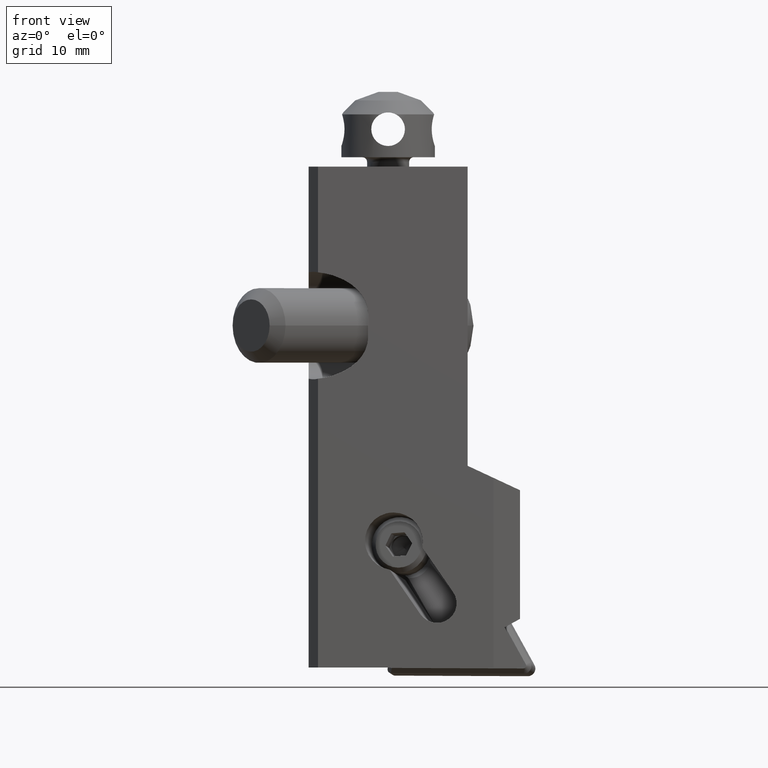
[diagram: clean part render]
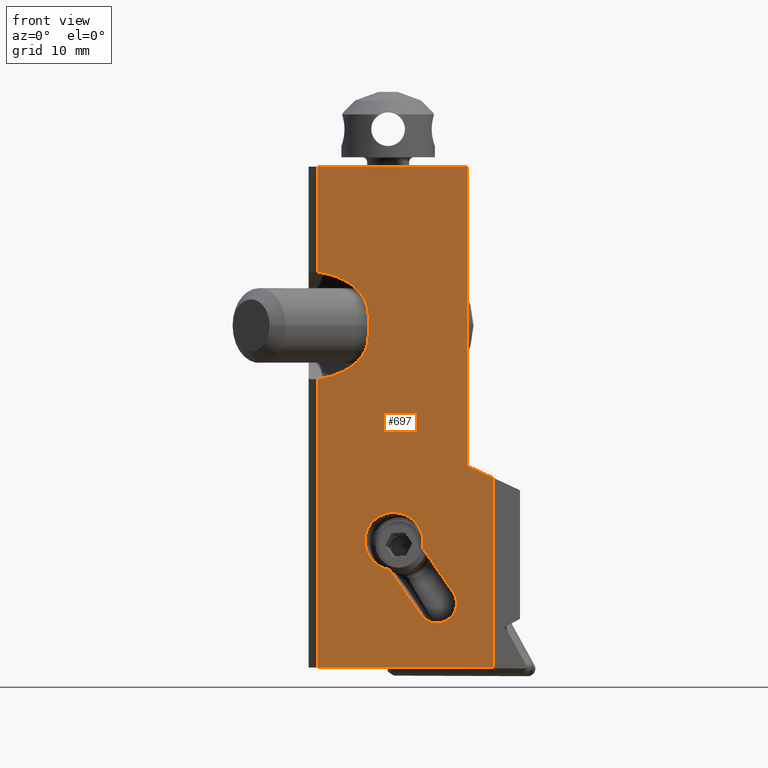
[diagram: same view with one face highlighted and labeled with its STEP entity id]
A machine part, front view. The second image highlights one B-rep face of the part: STEP entity #697.
In plain terms, the highlighted planar face has unit normal (0, 1, 0).
Its self-contained STEP definition (entity closure, byte-faithful):
#697=ADVANCED_FACE('',(#1038,#1039),#931,.F.);
#931=PLANE('',#4264);
#1038=FACE_BOUND('',#1074,.T.);
#1039=FACE_BOUND('',#1075,.T.);
#1074=EDGE_LOOP('',(#1344,#1345,#1346,#1347,#1348,#1349,#1350,#1351,#1352,
#1353));
#1075=EDGE_LOOP('',(#1354,#1355,#1356,#1357,#1358));
#1326=ELLIPSE('',#4259,6.36396103067893,4.5);
#1327=ELLIPSE('',#4260,6.36396103067893,4.5);
#1328=ELLIPSE('',#4261,3.11733698417095,3.062500000018);
#1329=ELLIPSE('',#4262,3.11733698417095,3.062500000018);
#1330=ELLIPSE('',#4263,2.13760250343591,2.100000000017);
#1344=ORIENTED_EDGE('',*,*,#2899,.T.);
#1345=ORIENTED_EDGE('',*,*,#2900,.T.);
#1346=ORIENTED_EDGE('',*,*,#2901,.T.);
#1347=ORIENTED_EDGE('',*,*,#2902,.F.);
#1348=ORIENTED_EDGE('',*,*,#2903,.T.);
#1349=ORIENTED_EDGE('',*,*,#2904,.T.);
#1350=ORIENTED_EDGE('',*,*,#2905,.T.);
#1351=ORIENTED_EDGE('',*,*,#2906,.F.);
#1352=ORIENTED_EDGE('',*,*,#2907,.T.);
#1353=ORIENTED_EDGE('',*,*,#2908,.T.);
#1354=ORIENTED_EDGE('',*,*,#2909,.T.);
#1355=ORIENTED_EDGE('',*,*,#2910,.F.);
#1356=ORIENTED_EDGE('',*,*,#2911,.T.);
#1357=ORIENTED_EDGE('',*,*,#2912,.T.);
#1358=ORIENTED_EDGE('',*,*,#2913,.T.);
#2526=VERTEX_POINT('',#5947);
#2527=VERTEX_POINT('',#5948);
#2528=VERTEX_POINT('',#5950);
#2529=VERTEX_POINT('',#5952);
#2530=VERTEX_POINT('',#5954);
#2531=VERTEX_POINT('',#5956);
#2532=VERTEX_POINT('',#5958);
#2533=VERTEX_POINT('',#5960);
#2534=VERTEX_POINT('',#5962);
#2535=VERTEX_POINT('',#5964);
#2536=VERTEX_POINT('',#5967);
#2537=VERTEX_POINT('',#5968);
#2538=VERTEX_POINT('',#5970);
#2539=VERTEX_POINT('',#5972);
#2540=VERTEX_POINT('',#5974);
#2899=EDGE_CURVE('',#2526,#2527,#3490,.T.);
#2900=EDGE_CURVE('',#2527,#2528,#3491,.T.);
#2901=EDGE_CURVE('',#2528,#2529,#3492,.T.);
#2902=EDGE_CURVE('',#2530,#2529,#3493,.T.);
#2903=EDGE_CURVE('',#2530,#2531,#3494,.T.);
#2904=EDGE_CURVE('',#2531,#2532,#3495,.T.);
#2905=EDGE_CURVE('',#2532,#2533,#3496,.T.);
#2906=EDGE_CURVE('',#2534,#2533,#1326,.T.);
#2907=EDGE_CURVE('',#2534,#2535,#3497,.T.);
#2908=EDGE_CURVE('',#2535,#2526,#1327,.T.);
#2909=EDGE_CURVE('',#2536,#2537,#1328,.T.);
#2910=EDGE_CURVE('',#2538,#2537,#1329,.T.);
#2911=EDGE_CURVE('',#2538,#2539,#3498,.T.);
#2912=EDGE_CURVE('',#2539,#2540,#1330,.T.);
#2913=EDGE_CURVE('',#2540,#2536,#3499,.T.);
#3490=LINE('',#5946,#3792);
#3491=LINE('',#5949,#3793);
#3492=LINE('',#5951,#3794);
#3493=LINE('',#5953,#3795);
#3494=LINE('',#5955,#3796);
#3495=LINE('',#5957,#3797);
#3496=LINE('',#5959,#3798);
#3497=LINE('',#5963,#3799);
#3498=LINE('',#5971,#3800);
#3499=LINE('',#5975,#3801);
#3792=VECTOR('',#4749,1.);
#3793=VECTOR('',#4750,1.);
#3794=VECTOR('',#4751,1.);
#3795=VECTOR('',#4752,1.);
#3796=VECTOR('',#4753,1.);
#3797=VECTOR('',#4754,1.);
#3798=VECTOR('',#4755,1.);
#3799=VECTOR('',#4758,1.);
#3800=VECTOR('',#4765,1.);
#3801=VECTOR('',#4768,1.);
#4259=AXIS2_PLACEMENT_3D('',#5961,#4756,#4757);
#4260=AXIS2_PLACEMENT_3D('',#5965,#4759,#4760);
#4261=AXIS2_PLACEMENT_3D('',#5966,#4761,#4762);
#4262=AXIS2_PLACEMENT_3D('',#5969,#4763,#4764);
#4263=AXIS2_PLACEMENT_3D('',#5973,#4766,#4767);
#4264=AXIS2_PLACEMENT_3D('',#5976,#4769,#4770);
#4749=DIRECTION('',(0.,0.,-1.));
#4750=DIRECTION('',(1.,0.,0.));
#4751=DIRECTION('',(-4.039682169787E-14,0.,1.));
#4752=DIRECTION('',(0.906307787037075,0.,-0.422618261739788));
#4753=DIRECTION('',(1.307750204423E-14,0.,1.));
#4754=DIRECTION('',(-1.,0.,0.));
#4755=DIRECTION('',(0.,0.,-1.));
#4756=DIRECTION('',(0.,-1.,0.));
#4757=DIRECTION('',(-1.,0.,0.));
#4758=DIRECTION('',(-7.105427357601E-14,7.188324010106E-14,-1.));
#4759=DIRECTION('',(0.,1.,0.));
#4760=DIRECTION('',(-1.,0.,0.));
#4761=DIRECTION('',(0.,1.,0.));
#4762=DIRECTION('',(-0.833226974346295,0.,0.552931107120696));
#4763=DIRECTION('',(0.,-1.,0.));
#4764=DIRECTION('',(-0.833226974346295,0.,0.552931107120696));
#4765=DIRECTION('',(0.568385460292204,1.28743734469101E-13,-0.822762401017705));
#4766=DIRECTION('',(0.,1.,0.));
#4767=DIRECTION('',(-0.833226974344658,0.,0.552931107123163));
#4768=DIRECTION('',(-0.568385460292615,-3.50193195826409E-13,0.822762401017421));
#4769=DIRECTION('',(0.,1.,0.));
#4770=DIRECTION('',(0.,0.,-1.));
#5946=CARTESIAN_POINT('',(-16.,1.057117356614E-13,-22.69409720866));
#5947=CARTESIAN_POINT('',(-16.,7.91477705134735E-14,-22.6940972086577));
#5948=CARTESIAN_POINT('',(-16.,0.,-53.58234527097));
#5949=CARTESIAN_POINT('',(-16.,0.,-53.58234527097));
#5950=CARTESIAN_POINT('',(2.764161612452,-2.708944180085E-14,-53.58234527097));
#5951=CARTESIAN_POINT('',(2.764161612452,-2.708944180085E-14,-53.58234527097));
#5952=CARTESIAN_POINT('',(2.764161612451,-2.708944180085E-14,-33.28894972826));
#5953=CARTESIAN_POINT('',(-4.181840059421E-13,0.,-32.));
#5954=CARTESIAN_POINT('',(-4.181840059421E-13,0.,-32.));
#5955=CARTESIAN_POINT('',(-4.181840059421E-13,0.,-32.));
#5956=CARTESIAN_POINT('',(0.,0.,0.));
#5957=CARTESIAN_POINT('',(0.,0.,0.));
#5958=CARTESIAN_POINT('',(-16.,0.,0.));
#5959=CARTESIAN_POINT('',(-16.,0.,0.));
#5960=CARTESIAN_POINT('',(-16.,-1.0842021724855E-16,-11.3059027913423));
#5961=CARTESIAN_POINT('',(-17.000000000001,0.,-15.75));
#5962=CARTESIAN_POINT('',(-10.6360389693209,0.,-15.7500000000001));
#5963=CARTESIAN_POINT('',(-10.63603896932,0.,-15.75));
#5964=CARTESIAN_POINT('',(-10.6360389693211,6.80323852808519E-14,-18.2500000000001));
#5965=CARTESIAN_POINT('',(-17.000000000001,0.,-18.25));
#5966=CARTESIAN_POINT('',(-7.87668417024118,0.,-40.0760911803074));
#5967=CARTESIAN_POINT('',(-8.33713591344843,-1.55218199403829E-12,-43.1134326071638));
#5968=CARTESIAN_POINT('',(-7.927385946836,0.,-36.99672207413));
#5969=CARTESIAN_POINT('',(-7.87668417024118,0.,-40.0760911803074));
#5970=CARTESIAN_POINT('',(-4.84327747635519,-1.66184427330245E-12,-40.7632127117714));
#5971=CARTESIAN_POINT('',(-4.843277476363,-1.664150299045E-12,-40.76321271176));
#5972=CARTESIAN_POINT('',(-1.55601934170207,-4.58433053368995E-13,-45.5216602523502));
#5973=CARTESIAN_POINT('',(-3.30294856024871,0.,-46.696770200058));
#5974=CARTESIAN_POINT('',(-5.04987777880935,0.,-47.8718801477382));
#5975=CARTESIAN_POINT('',(-5.049877778812,4.565237077259E-13,-47.87188014772));
#5976=CARTESIAN_POINT('',(-6.617919193774,0.,-26.79117263549));